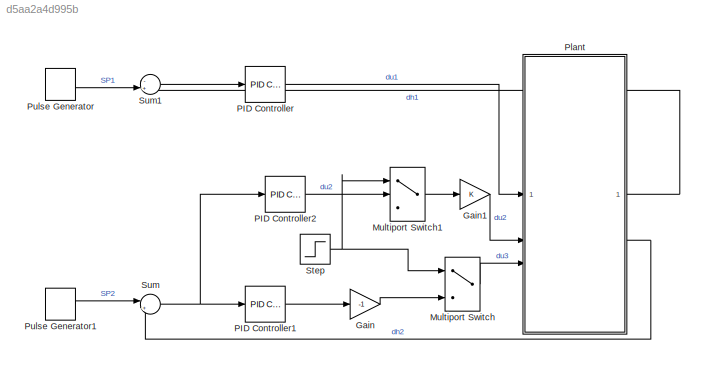
MODEL slx_d5aa2a4d995b
KIND model
CONFIG AbsTol = auto
CONFIG EnableMultiTasking = off
CONFIG FixedStep = auto
CONFIG InitFcn = A=[-0.5 0 ;0.25 0.25];\nB=[1 -1 0;0 0.5 -0.5];\nC=[1 0; 0 1];\nD=[0 0 0;0 0 0];\n\n
CONFIG MaxStep = 0.01
CONFIG MinStep = auto
CONFIG RelTol = 1e-3
CONFIG SampleTimeConstraint = Unconstrained
CONFIG SolverName = VariableStepAuto
CONFIG StartTime = 0.0
CONFIG StopTime = 500
BLOCK [Gain] Gain
  Gain = -1
BLOCK [Gain] Gain1
BLOCK [MultiPortSwitch] Multiport Switch
  InputSameDT = off
  Inputs = 2
  SaturateOnIntegerOverflow = off
BLOCK [MultiPortSwitch] Multiport Switch1
  InputSameDT = off
  Inputs = 2
  SaturateOnIntegerOverflow = off
BLOCK [Reference] PID Controller  REF=slpidlib/PID Controller
  LibrarySourceBlock = simulink/Continuous/PID Controller
  SourceBlock = slpidlib/PID Controller
  SourceType = PID 1dof
BLOCK [Reference] PID Controller1  REF=slpidlib/PID Controller
  LibrarySourceBlock = simulink/Continuous/PID Controller
  SourceBlock = slpidlib/PID Controller
  SourceType = PID 1dof
BLOCK [Reference] PID Controller2  REF=slpidlib/PID Controller
  SourceBlock = slpidlib/PID Controller
  SourceType = PID 1dof
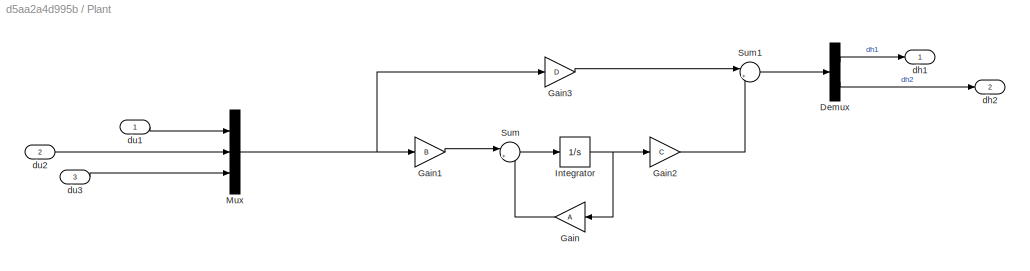
BLOCK [SubSystem] Plant 
BLOCK [Demux] Plant /Demux
  Outputs = 2
BLOCK [Gain] Plant /Gain
  Gain = A
  Multiplication = Matrix(K*u)
  NameLocation = top
BLOCK [Gain] Plant /Gain1
  Gain = B
  Multiplication = Matrix(K*u)
BLOCK [Gain] Plant /Gain2
  Gain = C
  Multiplication = Matrix(K*u)
BLOCK [Gain] Plant /Gain3
  Gain = D
  Multiplication = Matrix(K*u)
BLOCK [Integrator] Plant /Integrator
  LimitOutput = on
  LowerSaturationLimit = -1
  UpperSaturationLimit = 1
BLOCK [Mux] Plant /Mux
  DisplayOption = bar
  Inputs = 3
BLOCK [Sum] Plant /Sum
  Inputs = |++
BLOCK [Sum] Plant /Sum1
  Inputs = |++
BLOCK [Outport] Plant /dh1
BLOCK [Outport] Plant /dh2
  Port = 2
BLOCK [Inport] Plant /du1
BLOCK [Inport] Plant /du2
  Port = 2
BLOCK [Inport] Plant /du3
  Port = 3
BLOCK [DiscretePulseGenerator] Pulse Generator
  Amplitude = .1
  Period = 200
  PulseType = Time based
  PulseWidth = 50
BLOCK [DiscretePulseGenerator] Pulse Generator1
  Amplitude = .1
  Period = 200
  PhaseDelay = 50
  PulseType = Time based
  PulseWidth = 50
BLOCK [Step] Step
  Before = 2
  SampleTime = 0
  Time = 220
BLOCK [Sum] Sum
  Inputs = |+-
BLOCK [Sum] Sum1
  Inputs = -+|
LINE Gain1:1 -> Plant :2
LINE Gain:1 -> Multiport Switch:3
LINE Multiport Switch1:1 -> Gain1:1
LINE Multiport Switch:1 -> Plant :3
LINE PID Controller1:1 -> Gain:1
LINE PID Controller2:1 -> Multiport Switch1:2
LINE PID Controller:1 -> Plant :1
LINE Plant /Demux:1 -> Plant /dh1:1
LINE Plant /Demux:2 -> Plant /dh2:1
LINE Plant /Gain1:1 -> Plant /Sum:1
LINE Plant /Gain2:1 -> Plant /Sum1:2
LINE Plant /Gain3:1 -> Plant /Sum1:1
LINE Plant /Gain:1 -> Plant /Sum:2
NET Plant /Integrator:1 -> Plant /Gain2:1, Plant /Gain:1
NET Plant /Mux:1 -> Plant /Gain1:1, Plant /Gain3:1
LINE Plant /Sum1:1 -> Plant /Demux:1
LINE Plant /Sum:1 -> Plant /Integrator:1
LINE Plant /du1:1 -> Plant /Mux:1
LINE Plant /du2:1 -> Plant /Mux:2
LINE Plant /du3:1 -> Plant /Mux:3
LINE Plant :1 -> Sum1:1
LINE Plant :2 -> Sum:2
LINE Pulse Generator1:1 -> Sum:1
LINE Pulse Generator:1 -> Sum1:2
NET Step:1 -> Multiport Switch1:1, Multiport Switch:1
LINE Sum1:1 -> PID Controller:1
NET Sum:1 -> PID Controller1:1, PID Controller2:1
note: NET lines group one-source signal fan-out (src -> all destinations, sorted); 1:1 wires keep LINE
